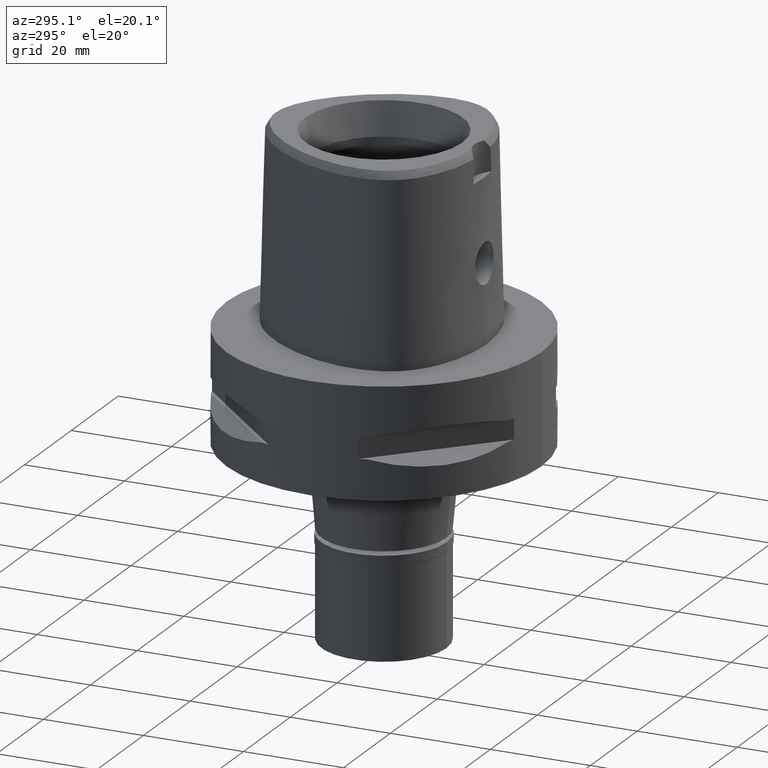
[diagram: clean part render]
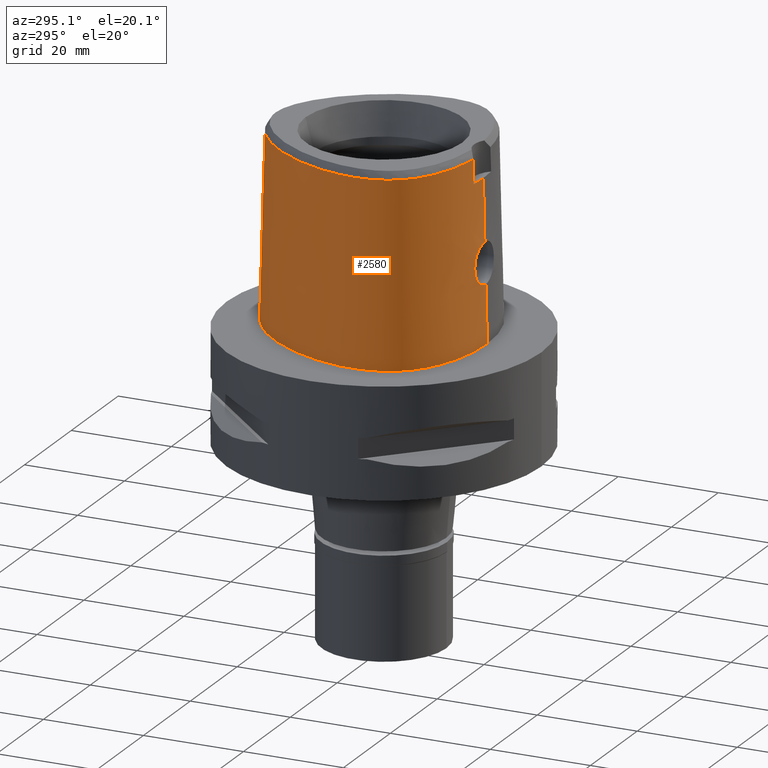
[diagram: same view with one face highlighted and labeled with its STEP entity id]
A machine part, auxiliary view. The second image highlights one B-rep face of the part: STEP entity #2580.
In plain terms, the highlighted face is a freeform B-spline surface patch.
Its self-contained STEP definition (entity closure, byte-faithful):
#11 = CARTESIAN_POINT ( 'NONE',  ( -14.22011356155863382, -16.41829364186094153, 36.52186244848002872 ) ) ;
#16 = CARTESIAN_POINT ( 'NONE',  ( -4.868968492506000167, 21.95285555309000003, 24.59139450068999722 ) ) ;
#52 = CARTESIAN_POINT ( 'NONE',  ( -10.91891098965448847, -18.03046406390404144, 36.52186244848002872 ) ) ;
#62 = CARTESIAN_POINT ( 'NONE',  ( -1.886862291941000080, -20.71358859364000082, -0.7304374604166999907 ) ) ;
#75 = CARTESIAN_POINT ( 'NONE',  ( -3.681202464753760673, -20.05114623155656517, 17.18881799334698712 ) ) ;
#86 = CARTESIAN_POINT ( 'NONE',  ( 0.6840430852512999760, -20.68668154439000162, -0.7304374604166999907 ) ) ;
#96 = CARTESIAN_POINT ( 'NONE',  ( -3.719087214484179782, -20.04922950744488119, 17.10350904975354780 ) ) ;
#122 = CARTESIAN_POINT ( 'NONE',  ( -4.029112128997369702, -20.06731645926722152, 15.01179623597176516 ) ) ;
#150 = CARTESIAN_POINT ( 'NONE',  ( -1.643520730781373507, -20.34173328277930537, 11.79827007538520078 ) ) ;
#170 = CARTESIAN_POINT ( 'NONE',  ( -4.044066505477513118, -20.04721252544028331, 15.73507387086861620 ) ) ;
#187 = CARTESIAN_POINT ( 'NONE',  ( -2.503210924593999742, 22.99958948433000216, 11.93047852013999943 ) ) ;
#277 = CARTESIAN_POINT ( 'NONE',  ( -17.80867316399000089, 10.28184213349000053, 11.93047852013999943 ) ) ;
#305 = CARTESIAN_POINT ( 'NONE',  ( -16.95889172504988096, -15.67838867074372899, 5.722191310738623804E-08 ) ) ;
#307 = CARTESIAN_POINT ( 'NONE',  ( -19.86834451576999783, 4.339653741548000099, 37.25231048124999944 ) ) ;
#320 = CARTESIAN_POINT ( 'NONE',  ( -1.538118951636905374, -20.16010692342699784, 19.24656396354603771 ) ) ;
#334 = CARTESIAN_POINT ( 'NONE',  ( -20.36546124038000372, -11.75800452932999995, -0.7304374604166999907 ) ) ;
#346 = CARTESIAN_POINT ( 'NONE',  ( -0.2464241258804160395, -20.18628283969000847, 19.55000000000000426 ) ) ;
#357 = CARTESIAN_POINT ( 'NONE',  ( -16.97022730770000010, -15.69280482681999978, -0.7304374604166999907 ) ) ;
#375 = CARTESIAN_POINT ( 'NONE',  ( -10.15538788053102870, 18.47129535093800357, 36.52186244848002872 ) ) ;
#381 = CARTESIAN_POINT ( 'NONE',  ( -13.93560880648000122, 15.24203803468000018, 24.59139450068999722 ) ) ;
#402 = CARTESIAN_POINT ( 'NONE',  ( -1.853278701734000222, -20.08023943806000133, 24.59139450068999722 ) ) ;
#413 = CARTESIAN_POINT ( 'NONE',  ( -2.692234386293709480, -20.10848872093370687, 18.52688609350985161 ) ) ;
#426 = ORIENTED_EDGE ( 'NONE', *, *, #1724, .F. ) ;
#434 = CARTESIAN_POINT ( 'NONE',  ( -3.732886069108005245, -20.04855707685973698, 17.07102236158772257 ) ) ;
#464 = CARTESIAN_POINT ( 'NONE',  ( -3.532595895446402512, -20.05924238134054960, 17.48448813221247633 ) ) ;
#470 = DIRECTION ( 'NONE',  ( -1.216889430697974023E-12, -0.02499051295360945474, -0.9996876883618780463 ) ) ;
#476 = CARTESIAN_POINT ( 'NONE',  ( -1.870070496837999974, -20.39691401585000108, 11.93047852013999943 ) ) ;
#489 = CARTESIAN_POINT ( 'NONE',  ( -4.036908680741610134, -20.04563838578225798, 15.83179226910426074 ) ) ;
#512 = CARTESIAN_POINT ( 'NONE',  ( -4.049434303841332294, -20.05059231178564971, 15.57487649449756972 ) ) ;
#540 = CARTESIAN_POINT ( 'NONE',  ( -3.252746545045676285, -20.07556334698199763, 17.92735859053750502 ) ) ;
#576 = CARTESIAN_POINT ( 'NONE',  ( 7.179858770233000865E-11, 23.47499999998000320, 1.574296248917999920E-13 ) ) ;
#638 = CARTESIAN_POINT ( 'NONE',  ( -18.56841065037800576, -14.16937988182999675, 5.722191310738623804E-08 ) ) ;
#639 = CARTESIAN_POINT ( 'NONE',  ( -13.69241995180999893, 15.03666405254000082, 37.25231048124999944 ) ) ;
#658 = CARTESIAN_POINT ( 'NONE',  ( -2.503154198992861179, -19.81241979316310164, 31.80000012753032124 ) ) ;
#663 = CARTESIAN_POINT ( 'NONE',  ( -2.113823672979883384, -20.67499999857254167, 5.722191310738623804E-08 ) ) ;
#664 = CARTESIAN_POINT ( 'NONE',  ( -18.58171406187999963, -14.18198046172999938, -0.7304374604166999907 ) ) ;
#697 = CARTESIAN_POINT ( 'NONE',  ( -7.580410837381000633, 21.33037925816000069, -0.7304374604166999907 ) ) ;
#709 = CARTESIAN_POINT ( 'NONE',  ( -2.848436480263273118, -20.09956352420859105, 18.37905853387589872 ) ) ;
#721 = CARTESIAN_POINT ( 'NONE',  ( -19.40779776656000166, -12.64961933105000114, 11.93047852013999943 ) ) ;
#730 = CARTESIAN_POINT ( 'NONE',  ( 7.179858770233000865E-11, 23.47499999998000320, 1.574296248917999920E-13 ) ) ;
#740 = CARTESIAN_POINT ( 'NONE',  ( -21.13154907844999997, -6.714587105175000126, 37.25231048124999944 ) ) ;
#778 = CARTESIAN_POINT ( 'NONE',  ( -2.137589333323351326, -20.13630075985212287, 18.94028540014067730 ) ) ;
#783 = CARTESIAN_POINT ( 'NONE',  ( -7.108589416785247472, 20.52412325828910156, 36.52186244848002872 ) ) ;
#789 = CARTESIAN_POINT ( 'NONE',  ( -6.175998637126000723, -19.37631814366999805, 37.25231048124999944 ) ) ;
#797 = ORIENTED_EDGE ( 'NONE', *, *, #3491, .F. ) ;
#800 = CARTESIAN_POINT ( 'NONE',  ( -0.5018630953899071434, -20.18408285361810428, 19.52745676262623675 ) ) ;
#812 = CARTESIAN_POINT ( 'NONE',  ( 0.6657744375879000032, -19.73734285377999953, 37.25231048124999944 ) ) ;
#823 = CARTESIAN_POINT ( 'NONE',  ( -3.735001824100349310, -20.04845488855010771, 17.06599329152011890 ) ) ;
#854 = CARTESIAN_POINT ( 'NONE',  ( -3.475951132005953070, -20.16700390521568664, 13.42117499721822682 ) ) ;
#874 = CARTESIAN_POINT ( 'NONE',  ( -3.075840905011448356, -20.08614280845655031, 18.15226295831239156 ) ) ;
#894 = CARTESIAN_POINT ( 'NONE',  ( -3.699178561932867204, -20.05022088569113592, 17.14924555479723622 ) ) ;
#900 = LINE ( 'NONE', #4616, #2322 ) ;
#911 = CARTESIAN_POINT ( 'NONE',  ( -0.5657070447358999443, 22.56734931617999962, 37.25231048124999944 ) ) ;
#944 = CARTESIAN_POINT ( 'NONE',  ( 6.838175993693963395E-09, -20.08420636276088445, 23.63333344114131052 ) ) ;
#958 = CARTESIAN_POINT ( 'NONE',  ( 2.041042029990999821E-08, -19.88004246002000031, 31.80000004972000127 ) ) ;
#960 = B_SPLINE_CURVE_WITH_KNOTS ( 'NONE', 3,
 ( #4349, #1020, #658, #2132 ),
 .UNSPECIFIED., .F., .F.,
 ( 4, 4 ),
 ( 0.0000000000000000000, 1.000000000000000000 ),
 .UNSPECIFIED. ) ;
#1006 = CARTESIAN_POINT ( 'NONE',  ( -21.94536988333999972, -4.102220498676000027, 11.93047852013999943 ) ) ;
#1020 = CARTESIAN_POINT ( 'NONE',  ( -1.251533273949974712, -19.88005341379904323, 31.80000012753032124 ) ) ;
#1025 = CARTESIAN_POINT ( 'NONE',  ( -20.09084482372999858, -11.59945466665999980, 11.93047852013999943 ) ) ;
#1047 = CARTESIAN_POINT ( 'NONE',  ( -21.44619314751999894, -6.759806581684000726, 24.59139450068999722 ) ) ;
#1066 = CARTESIAN_POINT ( 'NONE',  ( -2.091437245498612540, -20.13837408864853273, 18.96837817496660605 ) ) ;
#1073 = CARTESIAN_POINT ( 'NONE',  ( -19.55745547456145772, -11.29150218116699378, 36.52186244848002872 ) ) ;
#1079 = CARTESIAN_POINT ( 'NONE',  ( -10.55288411827999973, 18.94467594608000027, 11.93047852013999943 ) ) ;
#1091 = CARTESIAN_POINT ( 'NONE',  ( -1.021714302088697179, -20.17473291281259407, 19.42138159796416019 ) ) ;
#1100 = CARTESIAN_POINT ( 'NONE',  ( -7.259695532360999515, 20.78233580858999829, 24.59139450068999722 ) ) ;
#1113 = CARTESIAN_POINT ( 'NONE',  ( -16.39211280192276732, -14.95758113318637683, 36.52186244848002872 ) ) ;
#1161 = CARTESIAN_POINT ( 'NONE',  ( -17.27359245833206458, 9.972912913898722920, 36.52186244848002872 ) ) ;
#1166 = CARTESIAN_POINT ( 'NONE',  ( -10.91263716548000140, -18.01320824667999787, 37.25231048124999944 ) ) ;
#1175 = CARTESIAN_POINT ( 'NONE',  ( -1.818482488999721758, -20.33107785267256062, 11.88068409593779151 ) ) ;
#1187 = CARTESIAN_POINT ( 'NONE',  ( -6.232237616657999801, -19.68961197720000200, 24.59139450068999722 ) ) ;
#1197 = CARTESIAN_POINT ( 'NONE',  ( -4.047744849066394757, -20.04918701699465444, 15.63887515044690169 ) ) ;
#1224 = CARTESIAN_POINT ( 'NONE',  ( -1.764139318434896131, -20.33451526411483457, 11.85393035503466486 ) ) ;
#1246 = CARTESIAN_POINT ( 'NONE',  ( -1.577519395676829195, -20.34544937036640633, 11.76985478952774145 ) ) ;
#1268 = CARTESIAN_POINT ( 'NONE',  ( -3.998779586173955902, -20.04199266117421629, 16.15557531541971414 ) ) ;
#1350 = CARTESIAN_POINT ( 'NONE',  ( -19.64947365748221131, -12.82525390540088139, 5.722191310738623804E-08 ) ) ;
#1351 = FACE_OUTER_BOUND ( 'NONE', #1729, .T. ) ;
#1376 = CARTESIAN_POINT ( 'NONE',  ( -21.62788420678999657, -4.104079497270999966, 24.59139450068999722 ) ) ;
#1384 = ORIENTED_EDGE ( 'NONE', *, *, #3077, .F. ) ;
#1399 = CARTESIAN_POINT ( 'NONE',  ( -22.26285555988999931, -4.100361500081000088, -0.7304374604166999907 ) ) ;
#1410 = ORIENTED_EDGE ( 'NONE', *, *, #1552, .T. ) ;
#1411 = CARTESIAN_POINT ( 'NONE',  ( -2.463371562934652648, -20.12063864711725003, 18.71742396630857286 ) ) ;
#1415 = CARTESIAN_POINT ( 'NONE',  ( -0.7901461696980536242, 22.56201478746805478, 36.52186244848002872 ) ) ;
#1420 = CARTESIAN_POINT ( 'NONE',  ( -1.592306284729999911E-11, -20.67499999999999716, 1.603902196241999903E-13 ) ) ;
#1421 = CARTESIAN_POINT ( 'NONE',  ( -20.46725053456000154, 4.555493681933999284, 11.93047852013999943 ) ) ;
#1448 = CARTESIAN_POINT ( 'NONE',  ( -21.05621931237000055, -0.4440251235751000447, 37.25231048124999944 ) ) ;
#1469 = CARTESIAN_POINT ( 'NONE',  ( -11.13012658891999962, -18.61140125220999764, 11.93047852013999943 ) ) ;
#1482 = ORIENTED_EDGE ( 'NONE', *, *, #1653, .T. ) ;
#1516 = CARTESIAN_POINT ( 'NONE',  ( -20.67704215115629651, -8.734985316449741077, 36.52186244848002872 ) ) ;
#1525 = CARTESIAN_POINT ( 'NONE',  ( -1.836486906631000116, -19.76356486026999804, 37.25231048124999944 ) ) ;
#1539 = CARTESIAN_POINT ( 'NONE',  ( -3.727396028158295849, -20.04882352932437328, 17.08400395037987707 ) ) ;
#1552 = EDGE_CURVE ( 'NONE', #2488, #3967, #960, .T. ) ;
#1561 = CARTESIAN_POINT ( 'NONE',  ( -4.049901054974139214, -20.05137072365243966, 15.54168530306869833 ) ) ;
#1586 = CARTESIAN_POINT ( 'NONE',  ( -3.762073951675466432, -20.12261223007949695, 14.00020756116024678 ) ) ;
#1605 = ORIENTED_EDGE ( 'NONE', *, *, #3911, .T. ) ;
#1617 = CARTESIAN_POINT ( 'NONE',  ( -3.921778385327899574, -20.04103412782669835, 16.54509472696581796 ) ) ;
#1631 = CARTESIAN_POINT ( 'NONE',  ( 0.7042335332665999870, 23.15549829537999926, 11.93047852013999943 ) ) ;
#1636 = CARTESIAN_POINT ( 'NONE',  ( -3.643987966420014768, -20.05309771406466979, 17.26841253819149813 ) ) ;
#1639 = B_SPLINE_SURFACE_WITH_KNOTS ( 'NONE', 3, 3, ( 
 ( #3473, #1631, #4605, #4306 ),
 ( #2749, #4657, #3173, #2434 ),
 ( #2029, #4676, #4232, #911 ),
 ( #3495, #187, #4285, #1651 ),
 ( #3123, #2858, #16, #3271 ),
 ( #697, #4723, #1100, #3640 ),
 ( #2479, #1079, #4038, #1850 ),
 ( #2116, #3960, #381, #639 ),
 ( #4797, #277, #4746, #4770 ),
 ( #2904, #1421, #2576, #307 ),
 ( #4428, #2214, #3588, #1448 ),
 ( #1399, #1006, #1376, #4407 ),
 ( #3320, #4333, #1047, #740 ),
 ( #2553, #2138, #1747, #2169 ),
 ( #3220, #4355, #2497, #4062 ),
 ( #334, #1025, #3687, #1799 ),
 ( #3980, #721, #2193, #2836 ),
 ( #664, #3616, #1775, #3662 ),
 ( #357, #2880, #3247, #4376 ),
 ( #2522, #4013, #1820, #3292 ),
 ( #2932, #1469, #4111, #1166 ),
 ( #2646, #4132, #1187, #789 ),
 ( #62, #476, #402, #1525 ),
 ( #4502, #2999, #3020, #2287 ),
 ( #86, #4086, #2698, #812 ) ),
 .UNSPECIFIED., .F., .F., .F.,
 ( 4, 1, 1, 1, 1, 1, 1, 1, 1, 1, 1, 1, 1, 1, 1, 1, 1, 1, 1, 1, 1, 1, 4 ),
 ( 4, 4 ),
 ( -0.01173777939059999879, 0.0000000000000000000, 0.04166666666777999600, 0.08333333333438000534, 0.1250000000010000056, 0.1666666666676000219, 0.2500000000008000267, 0.3333333333340000038, 0.4166666666673000119, 0.5000000000005000445, 0.5416666666671000607, 0.5833333333336000459, 0.6250000000002999823, 0.6458333333336000459, 0.6666666666668999985, 0.6875000000001999512, 0.7083333333335000148, 0.7500000000001000311, 0.7916666666667999674, 0.8333333333333000637, 0.9166666666666000163, 1.000000000000000000, 1.008985696609000060 ),
 ( 7.164058658804000230E-09, 0.9999996346328999808 ),
 .UNSPECIFIED. ) ;
#1651 = CARTESIAN_POINT ( 'NONE',  ( -2.373090364477999703, 22.37624369598000484, 37.25231048124999944 ) ) ;
#1653 = EDGE_CURVE ( 'NONE', #4097, #3802, #2000, .T. ) ;
#1700 = CARTESIAN_POINT ( 'NONE',  ( -3.671249123513567802, -19.60525173594972514, 34.94790829898666829 ) ) ;
#1721 = CARTESIAN_POINT ( 'NONE',  ( -18.06826688402529868, 10.43171874928288467, 5.722191310738623804E-08 ) ) ;
#1724 = EDGE_CURVE ( 'NONE', #1810, #3577, #900, .T. ) ;
#1729 = EDGE_LOOP ( 'NONE', ( #426, #1384, #2032, #1410, #797, #1482, #1605, #4297 ) ) ;
#1747 = CARTESIAN_POINT ( 'NONE',  ( -20.96392264223000268, -8.820258356466000649, 24.59139450068999722 ) ) ;
#1775 = CARTESIAN_POINT ( 'NONE',  ( -18.12052916592999807, -13.74516039274999990, 24.59139450068999722 ) ) ;
#1789 = CARTESIAN_POINT ( 'NONE',  ( -2.191995429196192280, -20.13378363001804772, 18.90562196090360203 ) ) ;
#1799 = CARTESIAN_POINT ( 'NONE',  ( -19.54161199043999630, -11.28235494131000038, 37.25231048124999944 ) ) ;
#1810 = VERTEX_POINT ( 'NONE', #3427 ) ;
#1820 = CARTESIAN_POINT ( 'NONE',  ( -14.36818039354000121, -16.67825740749000119, 24.59139450068999722 ) ) ;
#1837 = CARTESIAN_POINT ( 'NONE',  ( -1.528460842553830412, -20.16043085492144016, 19.25051792937025397 ) ) ;
#1844 = CARTESIAN_POINT ( 'NONE',  ( -2.376843896521108501, 22.39422508474277862, 36.52186244848002872 ) ) ;
#1850 = CARTESIAN_POINT ( 'NONE',  ( -10.14358088561999871, 18.45723433161999694, 37.25231048124999944 ) ) ;
#1882 = CARTESIAN_POINT ( 'NONE',  ( -2.215422400688120685, -20.13268380732380436, 18.89035265562552723 ) ) ;
#1909 = CARTESIAN_POINT ( 'NONE',  ( -2.660224759427065599, -20.26476933587673557, 12.43052414327785726 ) ) ;
#1936 = CARTESIAN_POINT ( 'NONE',  ( -3.835752366812082759, -20.10963592611014761, 14.19693341416286358 ) ) ;
#1958 = CARTESIAN_POINT ( 'NONE',  ( -3.398618848663960801, -20.17773552920533220, 13.29727965505289511 ) ) ;
#1982 = CARTESIAN_POINT ( 'NONE',  ( -1.683569664050815762, -20.33937643437501563, 11.81639157428694098 ) ) ;
#2000 = B_SPLINE_CURVE_WITH_KNOTS ( 'NONE', 3,
 ( #2570, #2640, #3681, #52, #11, #1113, #4423, #4789, #1073, #2618, #1516, #4497, #3286, #4105, #3264, #1161, #4764, #375, #783, #2185, #1844, #1415, #2259 ),
 .UNSPECIFIED., .F., .F.,
 ( 4, 1, 1, 1, 1, 1, 1, 1, 1, 1, 1, 1, 1, 1, 1, 1, 1, 1, 1, 1, 4 ),
 ( 0.0000000000000000000, 0.03580973941716773801, 0.1234633994701237469, 0.1672902294964441205, 0.2111170595229746594, 0.2549438895494001156, 0.2768573045626129270, 0.2987707195758255718, 0.3206841345890382722, 0.3425975496022510280, 0.3864243796287815669, 0.4302512096551018295, 0.4740780396815272857, 0.5617316997343781981, 0.6493853597873343597, 0.7370390198401851611, 0.8246926798930360736, 0.8685195099194614743, 0.9123463399459079692, 0.9561731699723334810, 1.000000000000000000 ),
 .UNSPECIFIED. ) ;
#2012 = CARTESIAN_POINT ( 'NONE',  ( -3.793977348212806966, -20.11708672814312493, 14.08211814432855391 ) ) ;
#2029 = CARTESIAN_POINT ( 'NONE',  ( -0.6149727124020000213, 23.51889464378999861, -0.7304374604166999907 ) ) ;
#2032 = ORIENTED_EDGE ( 'NONE', *, *, #2272, .F. ) ;
#2047 = CARTESIAN_POINT ( 'NONE',  ( -5.098437016749509887, 22.52602538929668086, 5.722191310738623804E-08 ) ) ;
#2058 = B_SPLINE_CURVE_WITH_KNOTS ( 'NONE', 3,
 ( #4493, #346, #800, #2636, #1091, #2612, #2564, #3675, #4050, #3629, #1837, #320, #2962, #4463, #3307, #4099, #1066, #778, #1789, #1882, #2892, #3260, #4759, #1411, #3724, #413, #4028, #3350, #4392, #709, #2350, #874, #540, #4533, #464, #3848, #1636, #75, #894, #96, #1539, #434, #823, #3823, #1617, #1268, #3747, #489, #170, #1197, #512, #1561, #3378, #122, #3776, #2658, #2296, #1936, #2012, #2683, #1586, #3008, #2757, #2735, #2713, #4195, #3032, #854, #3800, #3479, #1958, #3109, #4243, #4141, #3088, #4172, #3059, #4612, #4512, #2327, #3401, #3422, #1909, #4563, #3450, #4216, #1175, #1224, #1982, #150, #4586, #1246, #2373, #2275, #3943, #3131, #3898 ),
 .UNSPECIFIED., .F., .F.,
 ( 4, 2, 2, 1, 1, 1, 2, 2, 2, 2, 1, 1, 2, 2, 2, 1, 1, 1, 2, 2, 2, 2, 2, 1, 1, 2, 2, 2, 2, 1, 2, 2, 2, 2, 1, 1, 1, 2, 2, 2, 2, 1, 1, 2, 2, 2, 1, 1, 1, 2, 2, 2, 2, 2, 1, 1, 2, 2, 4 ),
 ( 0.0000000000000000000, 0.06249999999998794020, 0.09374999999998190336, 0.1093749999999787531, 0.1171874999999771710, 0.1210937499999763800, 0.1230468749999759914, 0.1249999999999756028, 0.1562499999999747702, 0.1718749999999743538, 0.1796874999999739653, 0.1835937499999737710, 0.1855468749999734102, 0.1874999999999730493, 0.2187499999999678868, 0.2343749999999653333, 0.2421874999999643341, 0.2460937499999641120, 0.2480468749999643063, 0.2499999999999644729, 0.3124999999999772404, 0.3437499999999832911, 0.3593749999999863443, 0.3671874999999878986, 0.3710937499999886757, 0.3730468749999886202, 0.3749999999999885647, 0.4374999999999922284, 0.4687499999999936717, 0.4843749999999943379, 0.4921874999999951150, 0.4999999999999954481, 0.5625000000000008882, 0.5937500000000037748, 0.6093750000000052180, 0.6171875000000059952, 0.6210937500000063283, 0.6230468750000064393, 0.6250000000000066613, 0.6562500000000088818, 0.6718750000000098810, 0.6796875000000106581, 0.6835937500000108802, 0.6855468750000108802, 0.6875000000000107692, 0.7187500000000112133, 0.7343750000000115463, 0.7421875000000117684, 0.7460937500000118794, 0.7480468750000117684, 0.7500000000000115463, 0.8125000000000115463, 0.8437500000000115463, 0.8593750000000114353, 0.8671875000000115463, 0.8710937500000115463, 0.8730468750000115463, 0.8750000000000114353, 1.000000000000000000 ),
 .UNSPECIFIED. ) ;
#2116 = CARTESIAN_POINT ( 'NONE',  ( -14.42198651580999957, 15.65278599896999978, -0.7304374604166999907 ) ) ;
#2132 = CARTESIAN_POINT ( 'NONE',  ( -3.736722311398999796, -19.67781602443999844, 31.80000000000000071 ) ) ;
#2138 = CARTESIAN_POINT ( 'NONE',  ( -21.26836751480000132, -8.910752275043002157, 11.93047852013999943 ) ) ;
#2169 = CARTESIAN_POINT ( 'NONE',  ( -20.65947776967000138, -8.729764437889000916, 37.25231048124999944 ) ) ;
#2185 = CARTESIAN_POINT ( 'NONE',  ( -4.757642277158840471, 21.67478330407670839, 36.52186244848002872 ) ) ;
#2193 = CARTESIAN_POINT ( 'NONE',  ( -19.15132539129999856, -12.46323161860000006, 24.59139450068999722 ) ) ;
#2214 = CARTESIAN_POINT ( 'NONE',  ( -21.68301111113999724, -0.3332743859815999743, 11.93047852013999943 ) ) ;
#2259 = CARTESIAN_POINT ( 'NONE',  ( -1.408649407704000149E-11, 22.56201468012000078, 36.52186680743999858 ) ) ;
#2272 = EDGE_CURVE ( 'NONE', #2488, #2674, #4311, .T. ) ;
#2275 = CARTESIAN_POINT ( 'NONE',  ( -1.559311546694113870, -20.34645223326804953, 11.76220347681025657 ) ) ;
#2287 = CARTESIAN_POINT ( 'NONE',  ( 0.4439216941484999679, -19.74161872880999979, 37.25231048124999944 ) ) ;
#2296 = CARTESIAN_POINT ( 'NONE',  ( -3.867316193970359528, -20.10367422103039559, 14.29541136236472099 ) ) ;
#2322 = VECTOR ( 'NONE', #470, 1000.000000000000114 ) ;
#2327 = CARTESIAN_POINT ( 'NONE',  ( -2.901368335927171138, -20.23823636318377694, 12.67429120445467561 ) ) ;
#2339 = CARTESIAN_POINT ( 'NONE',  ( 0.0000000000000000000, -20.18628283968999781, 19.55000000000000071 ) ) ;
#2350 = CARTESIAN_POINT ( 'NONE',  ( -2.853427494732460712, -20.09927027520149778, 18.37411589075141549 ) ) ;
#2373 = CARTESIAN_POINT ( 'NONE',  ( -1.564389058766717522, -20.34617353922966743, 11.76432902843990469 ) ) ;
#2417 = CARTESIAN_POINT ( 'NONE',  ( 0.0000000000000000000, -20.18628283968999781, 19.55000000000000071 ) ) ;
#2433 = CARTESIAN_POINT ( 'NONE',  ( -3.637738201363999835, -19.56971413236999879, 36.52186244848000030 ) ) ;
#2434 = CARTESIAN_POINT ( 'NONE',  ( 0.4441907140256999842, 22.53710808405999799, 37.25231048124999944 ) ) ;
#2457 = CARTESIAN_POINT ( 'NONE',  ( -11.23259756678006127, -18.89324218615128359, 5.722191310738623804E-08 ) ) ;
#2479 = CARTESIAN_POINT ( 'NONE',  ( -10.75753573461000023, 19.18839675329999750, -0.7304374604166999907 ) ) ;
#2488 = VERTEX_POINT ( 'NONE', #958 ) ;
#2496 = CARTESIAN_POINT ( 'NONE',  ( -7.571159433626831081, 21.31457031126114998, 5.722191310738623804E-08 ) ) ;
#2497 = CARTESIAN_POINT ( 'NONE',  ( -20.36913789388999874, -10.35391850226999999, 24.59139450068999722 ) ) ;
#2522 = CARTESIAN_POINT ( 'NONE',  ( -14.68244496847000136, -17.23001772552000332, -0.7304374604166999907 ) ) ;
#2553 = CARTESIAN_POINT ( 'NONE',  ( -21.57281238736000262, -9.001246193620000113, -0.7304374604166999907 ) ) ;
#2564 = CARTESIAN_POINT ( 'NONE',  ( -1.316212535269692951, -20.16710171112574201, 19.33125628765317217 ) ) ;
#2570 = CARTESIAN_POINT ( 'NONE',  ( -3.637738201363999835, -19.56971413236999879, 36.52186244848000030 ) ) ;
#2576 = CARTESIAN_POINT ( 'NONE',  ( -20.16779752516999835, 4.447573711740999691, 24.59139450068999722 ) ) ;
#2580 = ADVANCED_FACE ( 'NONE', ( #1351 ), #1639, .T. ) ;
#2612 = CARTESIAN_POINT ( 'NONE',  ( -1.218005875164787533, -20.16978294415084960, 19.36311016229801396 ) ) ;
#2618 = CARTESIAN_POINT ( 'NONE',  ( -20.09619618741269420, -10.23243843868552005, 36.52186244848002872 ) ) ;
#2636 = CARTESIAN_POINT ( 'NONE',  ( -0.8910229356161439851, -20.17748289540245921, 19.45297631709836494 ) ) ;
#2640 = CARTESIAN_POINT ( 'NONE',  ( -4.467522189395333854, -19.48130287050689091, 36.52186244848002872 ) ) ;
#2646 = CARTESIAN_POINT ( 'NONE',  ( -6.344715575723000711, -20.31619964425000191, -0.7304374604166999907 ) ) ;
#2658 = CARTESIAN_POINT ( 'NONE',  ( -3.924963475027527071, -20.09231707308794768, 14.49211357784645138 ) ) ;
#2671 = B_SPLINE_CURVE_WITH_KNOTS ( 'NONE', 3,
 ( #2433, #1700, #3910, #3563 ),
 .UNSPECIFIED., .F., .F.,
 ( 4, 4 ),
 ( 0.0000000000000000000, 1.000000000000000000 ),
 .UNSPECIFIED. ) ;
#2674 = VERTEX_POINT ( 'NONE', #2339 ) ;
#2683 = CARTESIAN_POINT ( 'NONE',  ( -3.771834550949566989, -20.12093599901958640, 14.02476896472712475 ) ) ;
#2698 = CARTESIAN_POINT ( 'NONE',  ( 0.6718639868090000578, -20.05378908397999993, 24.59139450068999722 ) ) ;
#2713 = CARTESIAN_POINT ( 'NONE',  ( -3.654281681519454317, -20.14054008640389171, 13.74892359608015902 ) ) ;
#2735 = CARTESIAN_POINT ( 'NONE',  ( -3.705503517341164343, -20.13222450532426322, 13.86144430565050456 ) ) ;
#2749 = CARTESIAN_POINT ( 'NONE',  ( 0.4823619555423999672, 23.48603817665999927, -0.7304374604166999907 ) ) ;
#2757 = CARTESIAN_POINT ( 'NONE',  ( -3.751557432550738813, -20.12440805883260708, 13.97410089308170456 ) ) ;
#2775 = CARTESIAN_POINT ( 'NONE',  ( -14.67337964348328505, -17.21410156125277169, 5.722191310738623804E-08 ) ) ;
#2781 = CARTESIAN_POINT ( 'NONE',  ( 6.818197864790711922E-09, -19.98212988583235017, 27.71666688228298625 ) ) ;
#2811 = CARTESIAN_POINT ( 'NONE',  ( -22.24453907711568235, -4.100468750008345431, 5.722191310738623804E-08 ) ) ;
#2836 = CARTESIAN_POINT ( 'NONE',  ( -18.89485301602999812, -12.27684390615000076, 37.25231048124999944 ) ) ;
#2858 = CARTESIAN_POINT ( 'NONE',  ( -4.987110703283000213, 22.24795289519000363, 11.93047852013999943 ) ) ;
#2880 = CARTESIAN_POINT ( 'NONE',  ( -16.77374389049000314, -15.44292480774000076, 11.93047852013999943 ) ) ;
#2892 = CARTESIAN_POINT ( 'NONE',  ( -2.231063672826478772, -20.13194591380200649, 18.88008024028598442 ) ) ;
#2904 = CARTESIAN_POINT ( 'NONE',  ( -20.76670354395000118, 4.663413652126999764, -0.7304374604166999907 ) ) ;
#2932 = CARTESIAN_POINT ( 'NONE',  ( -11.23887130063999962, -18.91049775497000240, -0.7304374604166999907 ) ) ;
#2962 = CARTESIAN_POINT ( 'NONE',  ( -1.650830942587893091, -20.15630034123328684, 19.20005762584467490 ) ) ;
#2999 = CARTESIAN_POINT ( 'NONE',  ( 0.4520368093431000323, -20.37458469582000120, 11.93047852013999943 ) ) ;
#3008 = CARTESIAN_POINT ( 'NONE',  ( -3.755506502112012424, -20.12373561601753735, 13.98383751198284841 ) ) ;
#3020 = CARTESIAN_POINT ( 'NONE',  ( 0.4479792517458000556, -20.05810171231000183, 24.59139450068999722 ) ) ;
#3029 = VERTEX_POINT ( 'NONE', #730 ) ;
#3032 = CARTESIAN_POINT ( 'NONE',  ( -3.529587901960880014, -20.15932883106884077, 13.51266311374548401 ) ) ;
#3059 = CARTESIAN_POINT ( 'NONE',  ( -3.037032320190340862, -20.22295732401267188, 12.81921663156447444 ) ) ;
#3077 = EDGE_CURVE ( 'NONE', #2674, #1810, #2058, .T. ) ;
#3088 = CARTESIAN_POINT ( 'NONE',  ( -3.226696976353320867, -20.20031577916277143, 13.04878772517332308 ) ) ;
#3109 = CARTESIAN_POINT ( 'NONE',  ( -3.388437073896968688, -20.17911959071271255, 13.28164899243190611 ) ) ;
#3123 = CARTESIAN_POINT ( 'NONE',  ( -5.105252914058999281, 22.54305023729000368, -0.7304374604166999907 ) ) ;
#3131 = CARTESIAN_POINT ( 'NONE',  ( -0.5057738990276861024, -20.38876923347999792, 11.44999999999999929 ) ) ;
#3172 = CARTESIAN_POINT ( 'NONE',  ( -21.55524825872095818, -8.996025390216182416, 5.722191310738623804E-08 ) ) ;
#3173 = CARTESIAN_POINT ( 'NONE',  ( 0.4569144611979000237, 22.85341811493000463, 24.59139450068999722 ) ) ;
#3190 = CARTESIAN_POINT ( 'NONE',  ( -0.8548392421935926411, 23.47499999856846742, 5.722191310738623804E-08 ) ) ;
#3219 = CARTESIAN_POINT ( 'NONE',  ( -14.40795638848049798, 15.64093749907161879, 5.722191310738623804E-08 ) ) ;
#3220 = CARTESIAN_POINT ( 'NONE',  ( -20.94844325364000071, -10.61175396775999857, -0.7304374604166999907 ) ) ;
#3247 = CARTESIAN_POINT ( 'NONE',  ( -16.57726047328999996, -15.19304478865999997, 24.59139450068999722 ) ) ;
#3260 = CARTESIAN_POINT ( 'NONE',  ( -2.239856969731363279, -20.13152884900212314, 18.87425683354487305 ) ) ;
#3264 = CARTESIAN_POINT ( 'NONE',  ( -19.88562090098248802, 4.345879983791856027, 36.52186244848002872 ) ) ;
#3271 = CARTESIAN_POINT ( 'NONE',  ( -4.750826281730000211, 21.65775821099999732, 37.25231048124999944 ) ) ;
#3286 = CARTESIAN_POINT ( 'NONE',  ( -21.32871527670164369, -4.105831244393778334, 36.52186244848002872 ) ) ;
#3292 = CARTESIAN_POINT ( 'NONE',  ( -14.21104810607000069, -16.40237724846999612, 37.25231048124999944 ) ) ;
#3307 = CARTESIAN_POINT ( 'NONE',  ( -1.939836192645206792, -20.14494834039103921, 19.05583240531363742 ) ) ;
#3320 = CARTESIAN_POINT ( 'NONE',  ( -22.07548128566999779, -6.850245534702000150, -0.7304374604166999907 ) ) ;
#3350 = CARTESIAN_POINT ( 'NONE',  ( -2.818922407513416939, -20.10128822844972518, 18.40803291473346093 ) ) ;
#3378 = CARTESIAN_POINT ( 'NONE',  ( -4.050654962877649368, -20.05821372565917216, 15.26630698692703270 ) ) ;
#3401 = CARTESIAN_POINT ( 'NONE',  ( -2.889802012094198957, -20.23951504249362898, 12.66246361277263865 ) ) ;
#3422 = CARTESIAN_POINT ( 'NONE',  ( -2.884992592273059042, -20.24004566188675724, 12.65756944309004517 ) ) ;
#3427 = CARTESIAN_POINT ( 'NONE',  ( -1.985325948362999943E-12, -20.38876923348000147, 11.44999999999999929 ) ) ;
#3450 = CARTESIAN_POINT ( 'NONE',  ( -2.094698330858967061, -20.31212111404177634, 12.03117829531725569 ) ) ;
#3464 = EDGE_CURVE ( 'NONE', #3029, #3577, #4236, .T. ) ;
#3467 = CARTESIAN_POINT ( 'NONE',  ( -1.408649407704000149E-11, 22.56201468012000078, 36.52186680743999858 ) ) ;
#3473 = CARTESIAN_POINT ( 'NONE',  ( 0.7234356448054000133, 23.47140592122000058, -0.7304374604166999907 ) ) ;
#3479 = CARTESIAN_POINT ( 'NONE',  ( -3.413753259561017828, -20.17567067435313177, 13.32069051239774993 ) ) ;
#3491 = EDGE_CURVE ( 'NONE', #4097, #3967, #2671, .T. ) ;
#3495 = CARTESIAN_POINT ( 'NONE',  ( -2.568271204653000073, 23.31126237851000127, -0.7304374604166999907 ) ) ;
#3561 = DIRECTION ( 'NONE',  ( 2.350872679141960291E-12, 0.02499051290944955331, -0.9996876883629820520 ) ) ;
#3563 = CARTESIAN_POINT ( 'NONE',  ( -3.736722311398999796, -19.67781602443999844, 31.80000000000000071 ) ) ;
#3577 = VERTEX_POINT ( 'NONE', #1420 ) ;
#3587 = CARTESIAN_POINT ( 'NONE',  ( -20.74942740743949088, 4.657187499512730255, 5.722191310738623804E-08 ) ) ;
#3588 = CARTESIAN_POINT ( 'NONE',  ( -21.36961521175999934, -0.3886497547782999940, 24.59139450068999722 ) ) ;
#3616 = CARTESIAN_POINT ( 'NONE',  ( -18.35112161390999930, -13.96357042724000053, 11.93047852013999943 ) ) ;
#3629 = CARTESIAN_POINT ( 'NONE',  ( -1.512164209146945826, -20.16097225774381840, 19.25711813632777236 ) ) ;
#3640 = CARTESIAN_POINT ( 'NONE',  ( -7.099337879851000288, 20.50831408380999932, 37.25231048124999944 ) ) ;
#3662 = CARTESIAN_POINT ( 'NONE',  ( -17.88993671794999685, -13.52675035826000105, 37.25231048124999944 ) ) ;
#3675 = CARTESIAN_POINT ( 'NONE',  ( -1.430601551897738410, -20.16361267071486552, 19.28919783850901837 ) ) ;
#3681 = CARTESIAN_POINT ( 'NONE',  ( -7.300578999877835429, -19.07170748891793721, 36.52186244848002872 ) ) ;
#3687 = CARTESIAN_POINT ( 'NONE',  ( -19.81622840708000055, -11.44090480398000054, 24.59139450068999722 ) ) ;
#3724 = CARTESIAN_POINT ( 'NONE',  ( -2.616974497314557890, -20.11255651473903328, 18.59165385989735597 ) ) ;
#3747 = CARTESIAN_POINT ( 'NONE',  ( -4.017837804871217777, -20.04302390899466602, 16.02569059311054289 ) ) ;
#3776 = CARTESIAN_POINT ( 'NONE',  ( -3.956083447204464587, -20.08550065741570734, 14.62290215792870995 ) ) ;
#3800 = CARTESIAN_POINT ( 'NONE',  ( -3.448109345359251066, -20.17093134156017697, 13.37505777163232956 ) ) ;
#3802 = VERTEX_POINT ( 'NONE', #3467 ) ;
#3823 = CARTESIAN_POINT ( 'NONE',  ( -3.843927539702890694, -20.04324205241347556, 16.80464667681333424 ) ) ;
#3848 = CARTESIAN_POINT ( 'NONE',  ( -3.617495055999337517, -20.05453309010639629, 17.32207608147260558 ) ) ;
#3898 = CARTESIAN_POINT ( 'NONE',  ( -1.985325948362999943E-12, -20.38876923348000147, 11.44999999999999929 ) ) ;
#3910 = CARTESIAN_POINT ( 'NONE',  ( -3.704239276368590961, -19.64128040965313460, 33.37395414949332917 ) ) ;
#3911 = EDGE_CURVE ( 'NONE', #3802, #3029, #4303, .T. ) ;
#3943 = CARTESIAN_POINT ( 'NONE',  ( -1.038120173581188022, -20.37480898598739998, 11.54608628754385080 ) ) ;
#3959 = CARTESIAN_POINT ( 'NONE',  ( -2.564517726663245956, 23.29328124859099347, 5.722191310738623804E-08 ) ) ;
#3960 = CARTESIAN_POINT ( 'NONE',  ( -14.17879766115000173, 15.44741201681999954, 11.93047852013999943 ) ) ;
#3967 = VERTEX_POINT ( 'NONE', #4651 ) ;
#3979 = CARTESIAN_POINT ( 'NONE',  ( -6.341471018957284933, -20.29812499859196961, 5.722191310738623804E-08 ) ) ;
#3980 = CARTESIAN_POINT ( 'NONE',  ( -19.66427014182999855, -12.83600704350000044, -0.7304374604166999907 ) ) ;
#4013 = CARTESIAN_POINT ( 'NONE',  ( -14.52531268100999817, -16.95413756649999826, 11.93047852013999943 ) ) ;
#4028 = CARTESIAN_POINT ( 'NONE',  ( -2.777181714122131773, -20.10369618816578452, 18.44816514297376386 ) ) ;
#4038 = CARTESIAN_POINT ( 'NONE',  ( -10.34823250194999922, 18.70095513884999860, 24.59139450068999722 ) ) ;
#4050 = CARTESIAN_POINT ( 'NONE',  ( -1.487711088060786668, -20.16177791670569874, 19.26692910768832334 ) ) ;
#4062 = CARTESIAN_POINT ( 'NONE',  ( -20.07948521401000264, -10.22500076953000026, 37.25231048124999944 ) ) ;
#4086 = CARTESIAN_POINT ( 'NONE',  ( 0.6779535360301000013, -20.37023531418999767, 11.93047852013999943 ) ) ;
#4097 = VERTEX_POINT ( 'NONE', #4329 ) ;
#4099 = CARTESIAN_POINT ( 'NONE',  ( -1.999878669867697356, -20.14240846482617897, 19.02250095409247876 ) ) ;
#4105 = CARTESIAN_POINT ( 'NONE',  ( -21.07430010672476683, -0.4408303445193318404, 36.52186244848002872 ) ) ;
#4111 = CARTESIAN_POINT ( 'NONE',  ( -11.02138187719999785, -18.31230474944000264, 24.59139450068999722 ) ) ;
#4132 = CARTESIAN_POINT ( 'NONE',  ( -6.288476596190999857, -20.00290581071999796, 11.93047852013999943 ) ) ;
#4141 = CARTESIAN_POINT ( 'NONE',  ( -3.305114304791230140, -20.19036659517929877, 13.15559508066603733 ) ) ;
#4172 = CARTESIAN_POINT ( 'NONE',  ( -3.101512781402237628, -20.21538577278775151, 12.89471744043650681 ) ) ;
#4195 = CARTESIAN_POINT ( 'NONE',  ( -3.562616642736256001, -20.15445184636046605, 13.57265767130952838 ) ) ;
#4216 = CARTESIAN_POINT ( 'NONE',  ( -1.983006152425100144, -20.32017572453926135, 11.96651852923644732 ) ) ;
#4232 = CARTESIAN_POINT ( 'NONE',  ( -0.5821289339579999167, 22.88453109205000047, 24.59139450068999722 ) ) ;
#4236 = B_SPLINE_CURVE_WITH_KNOTS ( 'NONE', 3,
 ( #576, #3190, #3959, #2047, #2496, #4721, #3219, #1721, #3587, #4332, #2811, #4305, #3172, #4263, #4656, #1350, #638, #305, #2775, #2457, #3979, #663, #4284 ),
 .UNSPECIFIED., .F., .F.,
 ( 4, 1, 1, 1, 1, 1, 1, 1, 1, 1, 1, 1, 1, 1, 1, 1, 1, 1, 1, 1, 4 ),
 ( 0.0000000000000000000, 0.04166666666777999600, 0.08333333333438000534, 0.1250000000010000056, 0.1666666666676000219, 0.2500000000008000267, 0.3333333333340000038, 0.4166666666673000119, 0.5000000000005000445, 0.5416666666671000607, 0.5833333333336000459, 0.6250000000002999823, 0.6458333333336000459, 0.6666666666668999985, 0.6875000000001999512, 0.7083333333335000148, 0.7500000000001000311, 0.7916666666667999674, 0.8333333333333000637, 0.9166666666666000163, 1.000000000000000000 ),
 .UNSPECIFIED. ) ;
#4243 = CARTESIAN_POINT ( 'NONE',  ( -3.382679203379954647, -20.17989915803210366, 13.27288306886139502 ) ) ;
#4263 = CARTESIAN_POINT ( 'NONE',  ( -20.93173252079993318, -10.60431640567310652, 5.722191310738623804E-08 ) ) ;
#4284 = CARTESIAN_POINT ( 'NONE',  ( -1.592306284729999911E-11, -20.67499999999999716, 1.603902196241999903E-13 ) ) ;
#4285 = CARTESIAN_POINT ( 'NONE',  ( -2.438150644535999945, 22.68791659014999595, 24.59139450068999722 ) ) ;
#4297 = ORIENTED_EDGE ( 'NONE', *, *, #3464, .T. ) ;
#4303 = LINE ( 'NONE', #4673, #4632 ) ;
#4305 = CARTESIAN_POINT ( 'NONE',  ( -22.05732874180159087, -6.847636718545186518, 5.722191310738623804E-08 ) ) ;
#4306 = CARTESIAN_POINT ( 'NONE',  ( 0.6658293101889000143, 22.52368304368999929, 37.25231048124999944 ) ) ;
#4311 = B_SPLINE_CURVE_WITH_KNOTS ( 'NONE', 3,
 ( #4314, #2781, #944, #2417 ),
 .UNSPECIFIED., .F., .F.,
 ( 4, 4 ),
 ( 0.0000000000000000000, 1.000000000000000000 ),
 .UNSPECIFIED. ) ;
#4314 = CARTESIAN_POINT ( 'NONE',  ( 2.041042029990999821E-08, -19.88004246002000031, 31.80000004972000127 ) ) ;
#4329 = CARTESIAN_POINT ( 'NONE',  ( -3.637738201363999835, -19.56971413236999879, 36.52186244848000030 ) ) ;
#4332 = CARTESIAN_POINT ( 'NONE',  ( -21.97832647644705162, -0.2810937502502727225, 5.722191310738623804E-08 ) ) ;
#4333 = CARTESIAN_POINT ( 'NONE',  ( -21.76083721659999881, -6.805026058193000438, 11.93047852013999943 ) ) ;
#4349 = CARTESIAN_POINT ( 'NONE',  ( 2.041042029990999821E-08, -19.88004246002000031, 31.80000004972000127 ) ) ;
#4355 = CARTESIAN_POINT ( 'NONE',  ( -20.65879057376999839, -10.48283623502000061, 11.93047852013999943 ) ) ;
#4376 = CARTESIAN_POINT ( 'NONE',  ( -16.38077705609000034, -14.94316476958000095, 37.25231048124999944 ) ) ;
#4392 = CARTESIAN_POINT ( 'NONE',  ( -2.836652195082455918, -20.10025374000024811, 18.39066994790344722 ) ) ;
#4407 = CARTESIAN_POINT ( 'NONE',  ( -21.31039853025000141, -4.105938495864999815, 37.25231048124999944 ) ) ;
#4423 = CARTESIAN_POINT ( 'NONE',  ( -17.90324032096397033, -13.53935111955368598, 36.52186244848002872 ) ) ;
#4428 = CARTESIAN_POINT ( 'NONE',  ( -21.99640701052000225, -0.2778990171847999791, -0.7304374604166999907 ) ) ;
#4463 = CARTESIAN_POINT ( 'NONE',  ( -1.763433355344862230, -20.15211884142494014, 19.14834715962672007 ) ) ;
#4493 = CARTESIAN_POINT ( 'NONE',  ( 0.0000000000000000000, -20.18628283968999781, 19.55000000000000071 ) ) ;
#4497 = CARTESIAN_POINT ( 'NONE',  ( -21.14970188363628623, -6.717195958887447915, 36.52186244848002872 ) ) ;
#4502 = CARTESIAN_POINT ( 'NONE',  ( 0.4560943669404000089, -20.69106767931999968, -0.7304374604166999907 ) ) ;
#4512 = CARTESIAN_POINT ( 'NONE',  ( -2.918663470690828543, -20.23631948654438517, 12.69208574237718601 ) ) ;
#4533 = CARTESIAN_POINT ( 'NONE',  ( -3.468763634137176588, -20.06291945964193957, 17.59467451023499152 ) ) ;
#4563 = CARTESIAN_POINT ( 'NONE',  ( -2.432029744054197806, -20.28559770732344703, 12.25043513855138677 ) ) ;
#4586 = CARTESIAN_POINT ( 'NONE',  ( -1.597249180979428473, -20.34435389998080268, 11.77821901852013475 ) ) ;
#4605 = CARTESIAN_POINT ( 'NONE',  ( 0.6850314217277999607, 22.83959066953000061, 24.59139450068999722 ) ) ;
#4612 = CARTESIAN_POINT ( 'NONE',  ( -2.958636055787859931, -20.23185477066352078, 12.73397604582213916 ) ) ;
#4616 = CARTESIAN_POINT ( 'NONE',  ( -1.985325948362999943E-12, -20.38876923348000147, 11.44999999999999929 ) ) ;
#4632 = VECTOR ( 'NONE', #3561, 1000.000000000000114 ) ;
#4651 = CARTESIAN_POINT ( 'NONE',  ( -3.736722311398999796, -19.67781602443999844, 31.80000000000000071 ) ) ;
#4656 = CARTESIAN_POINT ( 'NONE',  ( -20.34961798433213431, -11.74885742115168519, 5.722191310738623804E-08 ) ) ;
#4657 = CARTESIAN_POINT ( 'NONE',  ( 0.4696382083702000387, 23.16972814579999707, 11.93047852013999943 ) ) ;
#4673 = CARTESIAN_POINT ( 'NONE',  ( -1.408649407704000149E-11, 22.56201468012000078, 36.52186680743999858 ) ) ;
#4676 = CARTESIAN_POINT ( 'NONE',  ( -0.5985508231799999690, 23.20171286791999776, 11.93047852013999943 ) ) ;
#4721 = CARTESIAN_POINT ( 'NONE',  ( -10.74572890966602756, 19.17433593639732337, 5.722191310738623804E-08 ) ) ;
#4723 = CARTESIAN_POINT ( 'NONE',  ( -7.420053184871000518, 21.05635753338000171, 11.93047852013999943 ) ) ;
#4746 = CARTESIAN_POINT ( 'NONE',  ( -17.53318594957000087, 10.12278939760000007, 24.59139450068999722 ) ) ;
#4759 = CARTESIAN_POINT ( 'NONE',  ( -2.356856442807431673, -20.12595546172612870, 18.79624697862192662 ) ) ;
#4764 = CARTESIAN_POINT ( 'NONE',  ( -13.70645028111303176, 15.04851272300481035, 36.52186244848002872 ) ) ;
#4770 = CARTESIAN_POINT ( 'NONE',  ( -17.25769873514999730, 9.963736661705000941, 37.25231048124999944 ) ) ;
#4789 = CARTESIAN_POINT ( 'NONE',  ( -18.90964971338296507, -12.28759719904765824, 36.52186244848002872 ) ) ;
#4797 = CARTESIAN_POINT ( 'NONE',  ( -18.08416037841000090, 10.44089486937999922, -0.7304374604166999907 ) ) ;